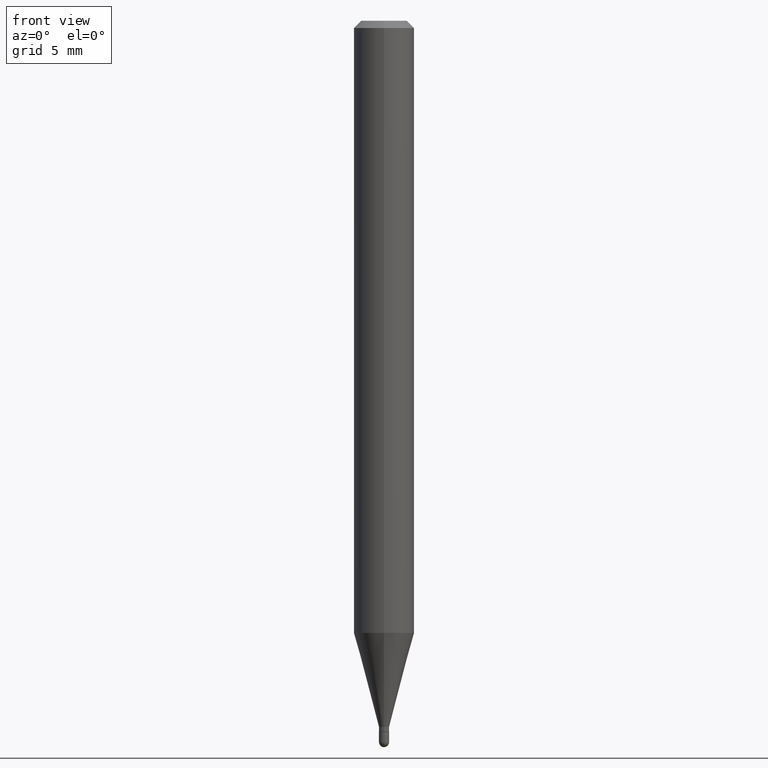
[diagram: clean part render]
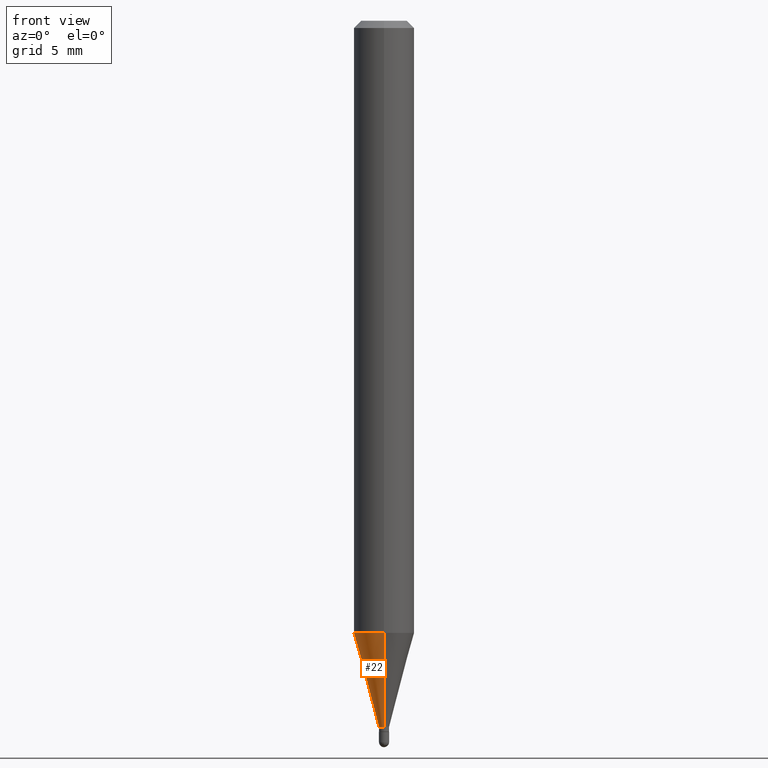
[diagram: same view with one face highlighted and labeled with its STEP entity id]
A machine part, front view. The second image highlights one B-rep face of the part: STEP entity #22.
In plain terms, the highlighted conical surface has half-angle 15 deg.
Its self-contained STEP definition (entity closure, byte-faithful):
#22 = ADVANCED_FACE ( 'NONE', ( #88 ), #44, .T. ) ;
#23 = AXIS2_PLACEMENT_3D ( 'NONE', #327, #47, #277 ) ;
#39 = CARTESIAN_POINT ( 'NONE',  ( -7.332110811566961097E-17, -0.01050000000000501574, -1.458000000000000185 ) ) ;
#44 = CONICAL_SURFACE ( 'NONE', #23, 0.01049999999999992432, 0.2617993877991504625 ) ;
#47 = DIRECTION ( 'NONE',  ( -2.445456902332758326E-29, 3.491498385837276386E-15, 1.000000000000000000 ) ) ;
#67 = CARTESIAN_POINT ( 'NONE',  ( 4.440892098500932831E-16, 0.06249999999999556605, -1.263933358006419372 ) ) ;
#80 = DIRECTION ( 'NONE',  ( -1.807323732225331323E-15, -0.2588190451025183525, 0.9659258262890689783 ) ) ;
#88 = FACE_OUTER_BOUND ( 'NONE', #110, .T. ) ;
#110 = EDGE_LOOP ( 'NONE', ( #311, #172, #346, #192 ) ) ;
#114 = LINE ( 'NONE', #39, #194 ) ;
#120 = VECTOR ( 'NONE', #461, 39.37007874015748854 ) ;
#136 = EDGE_CURVE ( 'NONE', #383, #169, #278, .T. ) ;
#167 = AXIS2_PLACEMENT_3D ( 'NONE', #214, #508, #308 ) ;
#169 = VERTEX_POINT ( 'NONE', #342 ) ;
#172 = ORIENTED_EDGE ( 'NONE', *, *, #261, .T. ) ;
#192 = ORIENTED_EDGE ( 'NONE', *, *, #136, .F. ) ;
#194 = VECTOR ( 'NONE', #80, 39.37007874015748854 ) ;
#202 = DIRECTION ( 'NONE',  ( -2.445456902332758326E-29, 3.491498385837276386E-15, 1.000000000000000000 ) ) ;
#214 = CARTESIAN_POINT ( 'NONE',  ( 3.565476163601162560E-29, -5.090604646550748565E-15, -1.458000000000000185 ) ) ;
#217 = CIRCLE ( 'NONE', #167, 0.01049999999999992432 ) ;
#232 = EDGE_CURVE ( 'NONE', #504, #383, #467, .T. ) ;
#236 = CARTESIAN_POINT ( 'NONE',  ( 2.593480985524697824E-16, 0.01049999999999483465, -1.458000000000000185 ) ) ;
#250 = VERTEX_POINT ( 'NONE', #357 ) ;
#261 = EDGE_CURVE ( 'NONE', #504, #250, #217, .T. ) ;
#277 = DIRECTION ( 'NONE',  ( -6.982962677686266711E-15, -1.000000000000000000, 0.000000000000000000 ) ) ;
#278 = CIRCLE ( 'NONE', #358, 0.06250000000000000000 ) ;
#308 = DIRECTION ( 'NONE',  ( -6.982962677686266711E-15, -1.000000000000000000, 0.000000000000000000 ) ) ;
#311 = ORIENTED_EDGE ( 'NONE', *, *, #232, .F. ) ;
#312 = CARTESIAN_POINT ( 'NONE',  ( 7.460698725484561614E-17, 0.01049999999999483465, -1.458000000000000185 ) ) ;
#327 = CARTESIAN_POINT ( 'NONE',  ( 3.565476163601162560E-29, -5.090604646550748565E-15, -1.458000000000000185 ) ) ;
#342 = CARTESIAN_POINT ( 'NONE',  ( -4.364351673553607559E-16, -0.06250000000000441314, -1.263933358006418706 ) ) ;
#346 = ORIENTED_EDGE ( 'NONE', *, *, #440, .T. ) ;
#357 = CARTESIAN_POINT ( 'NONE',  ( -7.332110811566961097E-17, -0.01050000000000501574, -1.458000000000000185 ) ) ;
#358 = AXIS2_PLACEMENT_3D ( 'NONE', #453, #202, #411 ) ;
#383 = VERTEX_POINT ( 'NONE', #67 ) ;
#411 = DIRECTION ( 'NONE',  ( -6.982962677686265922E-15, -1.000000000000000000, 4.370956789862821150E-15 ) ) ;
#440 = EDGE_CURVE ( 'NONE', #250, #169, #114, .T. ) ;
#453 = CARTESIAN_POINT ( 'NONE',  ( 3.090894554425418435E-29, -4.413021279285300535E-15, -1.263933358006419150 ) ) ;
#461 = DIRECTION ( 'NONE',  ( 1.839019923739601499E-15, 0.2588190451025251249, 0.9659258262890670910 ) ) ;
#467 = LINE ( 'NONE', #312, #120 ) ;
#504 = VERTEX_POINT ( 'NONE', #236 ) ;
#508 = DIRECTION ( 'NONE',  ( -2.445456902332758326E-29, 3.491498385837276386E-15, 1.000000000000000000 ) ) ;